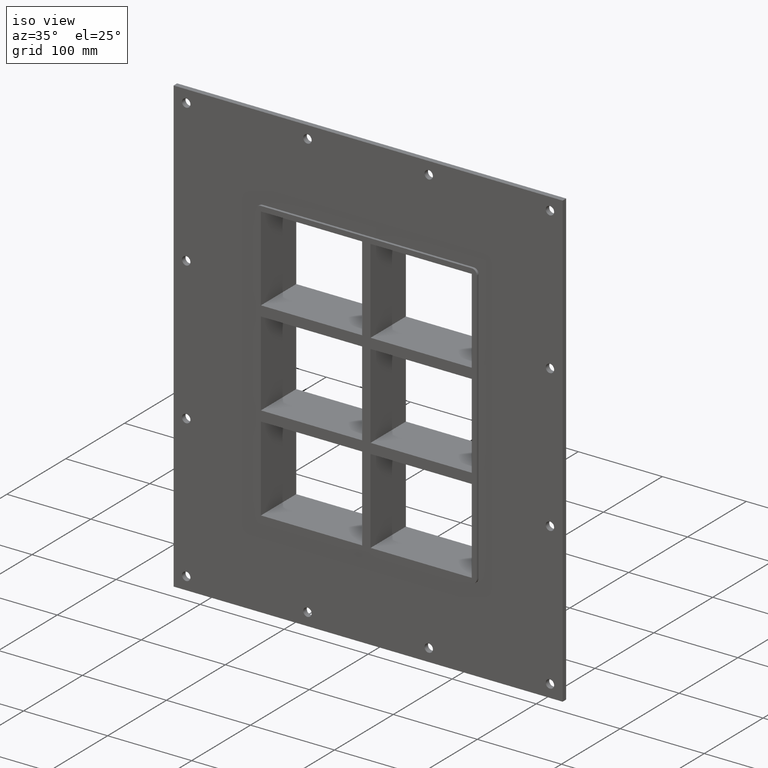
[diagram: clean part render]
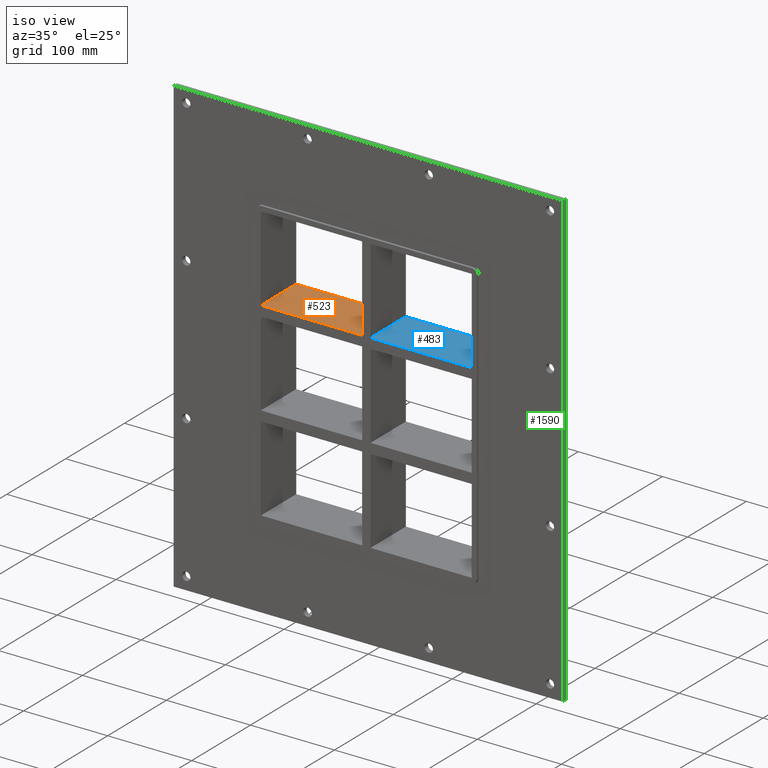
[diagram: same view with three faces highlighted in distinct colors, each labeled with its STEP entity id]
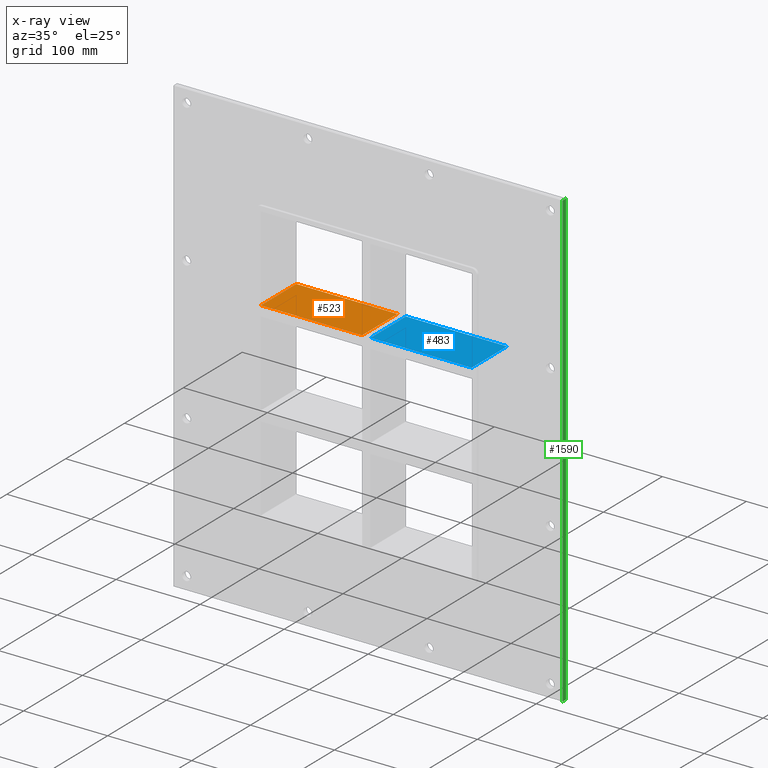
[diagram: x-ray of the same camera — body ghosted, the three highlighted faces saturated]
A machine part, iso view with three faces highlighted in distinct colors.
The next image is the same camera in x-ray (body ghosted, the three faces saturated) — at least one of them is partly hidden behind the body in this view.
Their STEP definitions:

[orange] entity #523 — the highlighted planar face has unit normal (0, 0, 1).
#484=CARTESIAN_POINT('',(-125.4999999999997,-3.0,62.499999999999893));
#485=DIRECTION('',(0.0,0.0,1.0));
#486=DIRECTION('',(1.0,0.0,0.0));
#487=AXIS2_PLACEMENT_3D('',#484,#485,#486);
#488=PLANE('',#487);
#489=CARTESIAN_POINT('',(-5.000000000001351,57.0,62.499999999999893));
#490=VERTEX_POINT('',#489);
#491=CARTESIAN_POINT('',(-5.00000000000135,-3.0,62.499999999999893));
#492=VERTEX_POINT('',#491);
#493=CARTESIAN_POINT('',(-5.00000000000135,57.0,62.499999999999893));
#494=DIRECTION('',(0.0,-1.0,0.0));
#495=VECTOR('',#494,60.0);
#496=LINE('',#493,#495);
#497=EDGE_CURVE('',#490,#492,#496,.T.);
#498=ORIENTED_EDGE('',*,*,#497,.F.);
#499=CARTESIAN_POINT('',(-125.4999999999997,57.0,62.499999999999893));
#500=VERTEX_POINT('',#499);
#501=CARTESIAN_POINT('',(-125.4999999999997,57.0,62.499999999999893));
#502=DIRECTION('',(1.0,0.0,0.0));
#503=VECTOR('',#502,120.49999999999835);
#504=LINE('',#501,#503);
#505=EDGE_CURVE('',#500,#490,#504,.T.);
#506=ORIENTED_EDGE('',*,*,#505,.F.);
#507=CARTESIAN_POINT('',(-125.4999999999997,-3.0,62.499999999999893));
#508=VERTEX_POINT('',#507);
#509=CARTESIAN_POINT('',(-125.5,-3.0,62.499999999999893));
#510=DIRECTION('',(0.0,1.0,0.0));
#511=VECTOR('',#510,60.000000000000007);
#512=LINE('',#509,#511);
#513=EDGE_CURVE('',#508,#500,#512,.T.);
#514=ORIENTED_EDGE('',*,*,#513,.F.);
#515=CARTESIAN_POINT('',(-125.4999999999997,-3.0,62.499999999999893));
#516=DIRECTION('',(1.0,0.0,0.0));
#517=VECTOR('',#516,120.49999999999835);
#518=LINE('',#515,#517);
#519=EDGE_CURVE('',#508,#492,#518,.T.);
#520=ORIENTED_EDGE('',*,*,#519,.T.);
#521=EDGE_LOOP('',(#498,#506,#514,#520));
#522=FACE_OUTER_BOUND('',#521,.T.);
#523=ADVANCED_FACE('',(#522),#488,.T.);

[blue] entity #483 — the highlighted planar face has unit normal (0, 0, 1).
#444=CARTESIAN_POINT('',(-125.4999999999997,-3.0,62.499999999999893));
#445=DIRECTION('',(0.0,0.0,1.0));
#446=DIRECTION('',(1.0,0.0,0.0));
#447=AXIS2_PLACEMENT_3D('',#444,#445,#446);
#448=PLANE('',#447);
#449=CARTESIAN_POINT('',(5.0,-3.0,62.499999999999893));
#450=VERTEX_POINT('',#449);
#451=CARTESIAN_POINT('',(5.0,57.0,62.499999999999893));
#452=VERTEX_POINT('',#451);
#453=CARTESIAN_POINT('',(5.0,-3.0,62.499999999999893));
#454=DIRECTION('',(0.0,1.0,0.0));
#455=VECTOR('',#454,60.0);
#456=LINE('',#453,#455);
#457=EDGE_CURVE('',#450,#452,#456,.T.);
#458=ORIENTED_EDGE('',*,*,#457,.F.);
#459=CARTESIAN_POINT('',(125.49999999999989,-3.0,62.499999999999893));
#460=VERTEX_POINT('',#459);
#461=CARTESIAN_POINT('',(5.000000000000014,-3.0,62.499999999999893));
#462=DIRECTION('',(1.0,0.0,0.0));
#463=VECTOR('',#462,120.49999999999989);
#464=LINE('',#461,#463);
#465=EDGE_CURVE('',#450,#460,#464,.T.);
#466=ORIENTED_EDGE('',*,*,#465,.T.);
#467=CARTESIAN_POINT('',(125.49999999999989,57.0,62.499999999999893));
#468=VERTEX_POINT('',#467);
#469=CARTESIAN_POINT('',(125.49999999999997,57.000000000000007,62.499999999999893));
#470=DIRECTION('',(0.0,-1.0,0.0));
#471=VECTOR('',#470,60.000000000000007);
#472=LINE('',#469,#471);
#473=EDGE_CURVE('',#468,#460,#472,.T.);
#474=ORIENTED_EDGE('',*,*,#473,.F.);
#475=CARTESIAN_POINT('',(5.000000000000014,57.0,62.499999999999893));
#476=DIRECTION('',(1.0,0.0,0.0));
#477=VECTOR('',#476,120.49999999999989);
#478=LINE('',#475,#477);
#479=EDGE_CURVE('',#452,#468,#478,.T.);
#480=ORIENTED_EDGE('',*,*,#479,.F.);
#481=EDGE_LOOP('',(#458,#466,#474,#480));
#482=FACE_OUTER_BOUND('',#481,.T.);
#483=ADVANCED_FACE('',(#482),#448,.T.);

[green] entity #1590 — the highlighted planar face has unit normal (1, 0, 0).
#1250=CARTESIAN_POINT('',(231.5,6.000000000000001,269.5));
#1251=VERTEX_POINT('',#1250);
#1258=CARTESIAN_POINT('',(231.5,6.000000000000001,-269.5));
#1259=VERTEX_POINT('',#1258);
#1260=CARTESIAN_POINT('',(231.49999999999994,6.000000000000001,269.5));
#1261=DIRECTION('',(0.0,0.0,-1.0));
#1262=VECTOR('',#1261,539.0);
#1263=LINE('',#1260,#1262);
#1264=EDGE_CURVE('',#1251,#1259,#1263,.T.);
#1396=CARTESIAN_POINT('',(231.49999999999994,0.0,269.5));
#1397=VERTEX_POINT('',#1396);
#1412=CARTESIAN_POINT('',(231.49999999999994,0.0,-269.50000000000006));
#1413=VERTEX_POINT('',#1412);
#1420=CARTESIAN_POINT('',(231.49999999999994,0.0,269.5));
#1421=DIRECTION('',(0.0,0.0,-1.0));
#1422=VECTOR('',#1421,539.0);
#1423=LINE('',#1420,#1422);
#1424=EDGE_CURVE('',#1397,#1413,#1423,.T.);
#1565=CARTESIAN_POINT('',(231.49999999999994,0.0,-269.50000000000006));
#1566=DIRECTION('',(0.0,1.0,0.0));
#1567=VECTOR('',#1566,6.000000000000001);
#1568=LINE('',#1565,#1567);
#1569=EDGE_CURVE('',#1413,#1259,#1568,.T.);
#1574=CARTESIAN_POINT('',(231.49999999999994,0.0,269.5));
#1575=DIRECTION('',(1.0,0.0,0.0));
#1576=DIRECTION('',(0.0,0.0,-1.0));
#1577=AXIS2_PLACEMENT_3D('',#1574,#1575,#1576);
#1578=PLANE('',#1577);
#1579=ORIENTED_EDGE('',*,*,#1424,.T.);
#1580=ORIENTED_EDGE('',*,*,#1569,.T.);
#1581=ORIENTED_EDGE('',*,*,#1264,.F.);
#1582=CARTESIAN_POINT('',(231.49999999999994,0.0,269.5));
#1583=DIRECTION('',(0.0,1.0,0.0));
#1584=VECTOR('',#1583,6.000000000000001);
#1585=LINE('',#1582,#1584);
#1586=EDGE_CURVE('',#1397,#1251,#1585,.T.);
#1587=ORIENTED_EDGE('',*,*,#1586,.F.);
#1588=EDGE_LOOP('',(#1579,#1580,#1581,#1587));
#1589=FACE_OUTER_BOUND('',#1588,.T.);
#1590=ADVANCED_FACE('',(#1589),#1578,.T.);